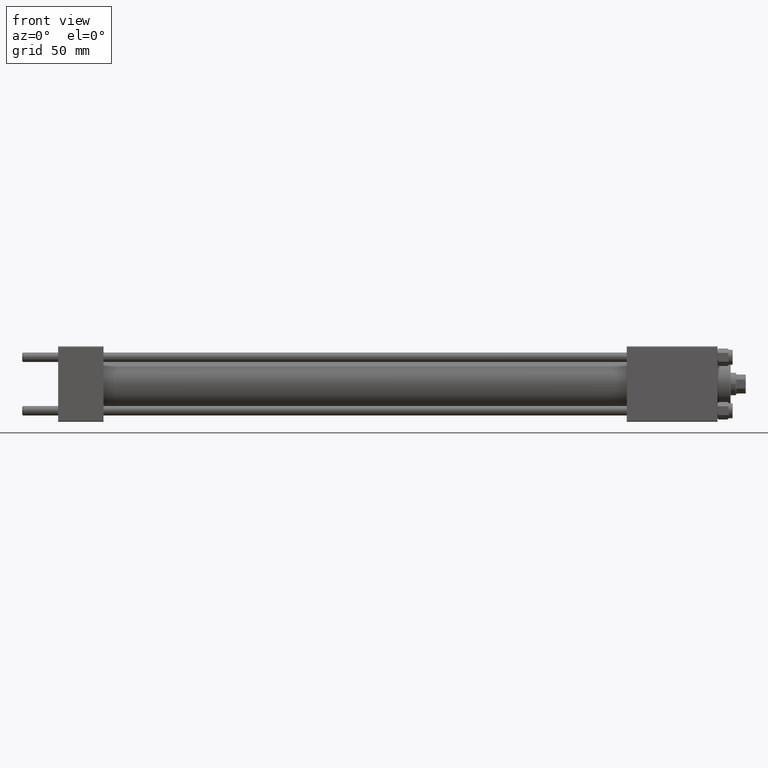
[diagram: clean part render]
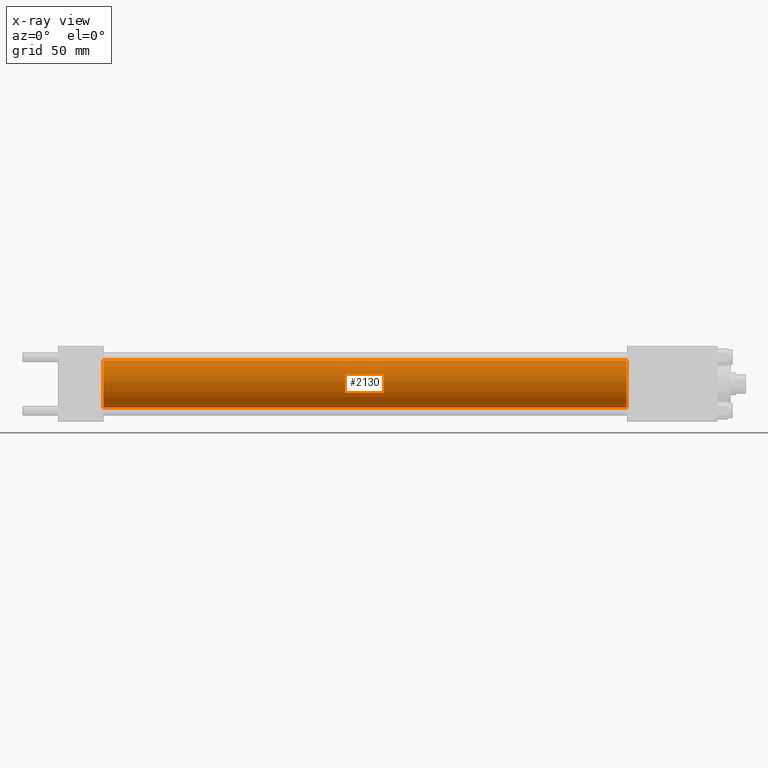
[diagram: x-ray — body ghosted, one internal face saturated and labeled with its STEP entity id]
A machine part, front view, then the same camera in x-ray: the body is ghosted and one INTERNAL B-rep face — a face not visible from any outside direction — is saturated and labeled: STEP entity #2130.
In plain terms, the highlighted cylindrical surface (edge-blend (fillet) strip) has radius 12.5 mm, axis along (-1, -0, -0).
Its self-contained STEP definition (entity closure, byte-faithful):
#1475 = ORIENTED_EDGE ( 'NONE', *, *, #33708, .F. ) ;
#2104 = CARTESIAN_POINT ( 'NONE',  ( 301.0000000000000568, 0.000000000000000000, 0.000000000000000000 ) ) ;
#2130 = ADVANCED_FACE ( 'NONE', ( #3086 ), #29776, .F. ) ;
#2906 = DIRECTION ( 'NONE',  ( -1.000000000000000000, -0.000000000000000000, -0.000000000000000000 ) ) ;
#3086 = FACE_OUTER_BOUND ( 'NONE', #26278, .T. ) ;
#5855 = CARTESIAN_POINT ( 'NONE',  ( 301.0000000000000568, 0.000000000000000000, 12.49999999999999645 ) ) ;
#6332 = DIRECTION ( 'NONE',  ( 0.000000000000000000, 0.000000000000000000, -1.000000000000000000 ) ) ;
#7896 = EDGE_CURVE ( 'NONE', #27369, #28138, #30636, .T. ) ;
#9632 = LINE ( 'NONE', #5855, #41436 ) ;
#11198 = AXIS2_PLACEMENT_3D ( 'NONE', #25839, #41196, #18038 ) ;
#12159 = AXIS2_PLACEMENT_3D ( 'NONE', #25444, #40799, #6332 ) ;
#12337 = VERTEX_POINT ( 'NONE', #48806 ) ;
#13052 = ORIENTED_EDGE ( 'NONE', *, *, #14078, .T. ) ;
#14078 = EDGE_CURVE ( 'NONE', #46010, #12337, #25660, .T. ) ;
#18038 = DIRECTION ( 'NONE',  ( 0.000000000000000000, 0.000000000000000000, -1.000000000000000000 ) ) ;
#18430 = DIRECTION ( 'NONE',  ( -1.000000000000000000, -0.000000000000000000, -0.000000000000000000 ) ) ;
#21199 = DIRECTION ( 'NONE',  ( -1.000000000000000000, -0.000000000000000000, -0.000000000000000000 ) ) ;
#21813 = EDGE_CURVE ( 'NONE', #12337, #28138, #25305, .T. ) ;
#22537 = CARTESIAN_POINT ( 'NONE',  ( 301.0000000000000568, 1.530808498934191127E-15, -12.49999999999999645 ) ) ;
#24145 = CARTESIAN_POINT ( 'NONE',  ( 24.00000000000000000, 1.530808498934191127E-15, -12.49999999999999645 ) ) ;
#25305 = LINE ( 'NONE', #22537, #41149 ) ;
#25444 = CARTESIAN_POINT ( 'NONE',  ( 24.00000000000000000, 0.000000000000000000, 0.000000000000000000 ) ) ;
#25660 = CIRCLE ( 'NONE', #11198, 12.49999999999999645 ) ;
#25839 = CARTESIAN_POINT ( 'NONE',  ( 301.0000000000000568, 0.000000000000000000, 0.000000000000000000 ) ) ;
#26278 = EDGE_LOOP ( 'NONE', ( #13052, #44782, #35388, #1475 ) ) ;
#27369 = VERTEX_POINT ( 'NONE', #47439 ) ;
#28138 = VERTEX_POINT ( 'NONE', #24145 ) ;
#29776 = CYLINDRICAL_SURFACE ( 'NONE', #36086, 12.49999999999999645 ) ;
#30636 = CIRCLE ( 'NONE', #12159, 12.49999999999999645 ) ;
#31630 = CARTESIAN_POINT ( 'NONE',  ( 301.0000000000000568, 0.000000000000000000, 12.49999999999999645 ) ) ;
#33708 = EDGE_CURVE ( 'NONE', #46010, #27369, #9632, .T. ) ;
#35388 = ORIENTED_EDGE ( 'NONE', *, *, #7896, .F. ) ;
#36086 = AXIS2_PLACEMENT_3D ( 'NONE', #2104, #18430, #49162 ) ;
#40799 = DIRECTION ( 'NONE',  ( 1.000000000000000000, 0.000000000000000000, 0.000000000000000000 ) ) ;
#41149 = VECTOR ( 'NONE', #2906, 1000.000000000000000 ) ;
#41196 = DIRECTION ( 'NONE',  ( 1.000000000000000000, 0.000000000000000000, 0.000000000000000000 ) ) ;
#41436 = VECTOR ( 'NONE', #21199, 1000.000000000000000 ) ;
#44782 = ORIENTED_EDGE ( 'NONE', *, *, #21813, .T. ) ;
#46010 = VERTEX_POINT ( 'NONE', #31630 ) ;
#47439 = CARTESIAN_POINT ( 'NONE',  ( 24.00000000000000000, 0.000000000000000000, 12.49999999999999645 ) ) ;
#48806 = CARTESIAN_POINT ( 'NONE',  ( 301.0000000000000568, 1.530808498934191127E-15, -12.49999999999999645 ) ) ;
#49162 = DIRECTION ( 'NONE',  ( 0.000000000000000000, 0.000000000000000000, 1.000000000000000000 ) ) ;